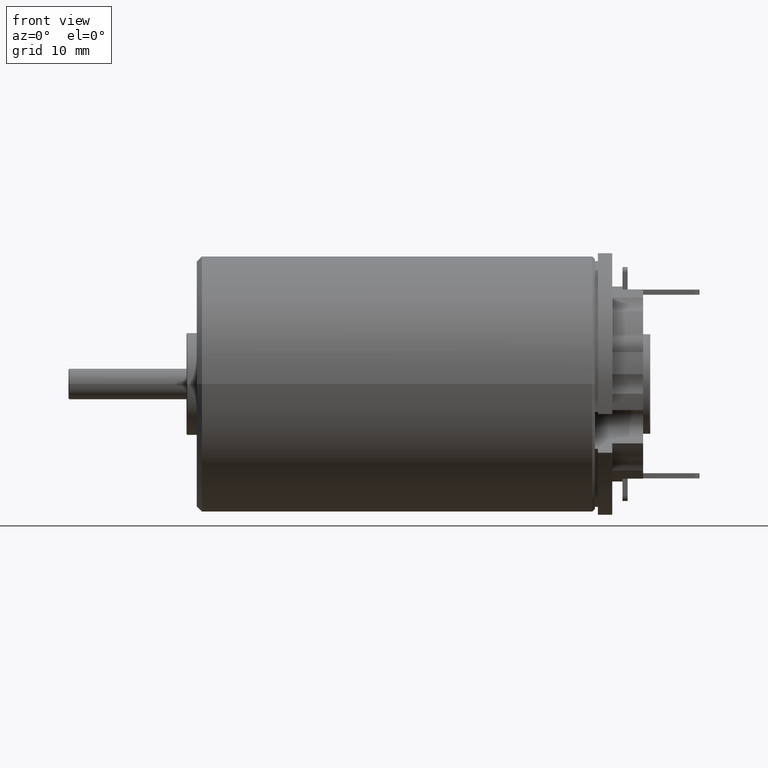
[diagram: clean part render]
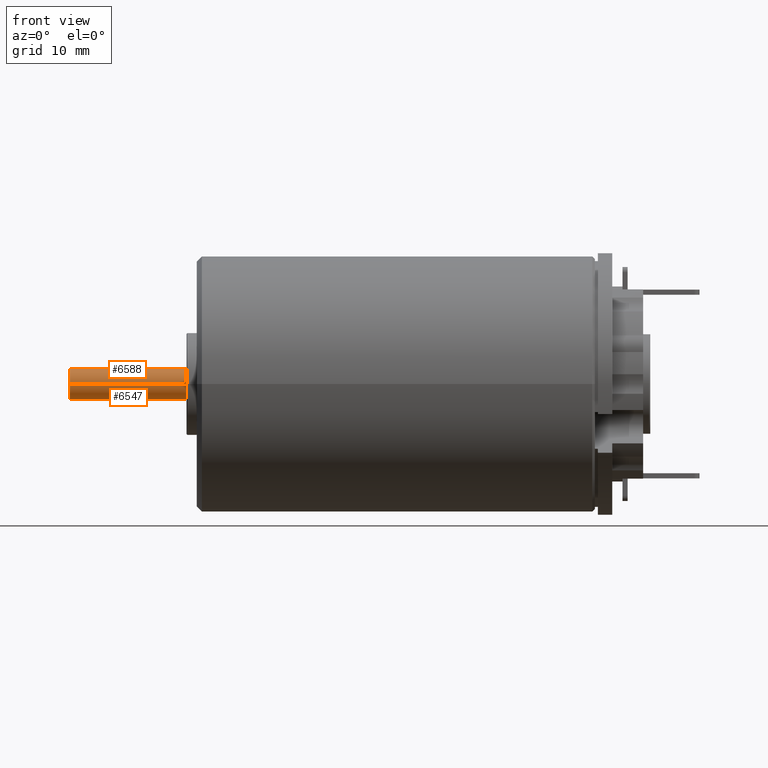
[diagram: same view with one multi-face feature highlighted, each face labeled with its STEP entity id]
A machine part, front view. The highlighted faces form ONE feature: a constant-radius fillet chain: 2 tangent blend faces with common blend radius 1.5 mm. The faces share edges in the B-rep.
Their STEP definitions:
[1] entity #6588 (Cylinder):
#2320=CARTESIAN_POINT('',(-1.E0,0.E0,0.E0));
#2321=DIRECTION('',(-1.E0,0.E0,0.E0));
#2322=DIRECTION('',(0.E0,-1.E0,0.E0));
#2323=AXIS2_PLACEMENT_3D('',#2320,#2321,#2322);
#2348=CARTESIAN_POINT('',(-1.24E1,0.E0,0.E0));
#2349=DIRECTION('',(1.E0,0.E0,0.E0));
#2350=DIRECTION('',(0.E0,1.E0,0.E0));
#2351=AXIS2_PLACEMENT_3D('',#2348,#2349,#2350);
#2353=DIRECTION('',(1.E0,3.456778137392E-10,-4.862429507611E-10));
#2354=VECTOR('',#2353,1.140000000394E1);
#2355=CARTESIAN_POINT('',(-1.240000000394E1,1.499999996059E0,
5.543169418549E-9));
#2356=LINE('',#2355,#2354);
#2357=DIRECTION('',(1.E0,-3.456777942616E-10,4.862429134404E-10));
#2358=VECTOR('',#2357,1.140000000394E1);
#2359=CARTESIAN_POINT('',(-1.240000000394E1,-1.499999996059E0,
-5.543169215137E-9));
#2360=LINE('',#2359,#2358);
#3213=CARTESIAN_POINT('',(-1.E0,-1.5E0,0.E0));
#3214=CARTESIAN_POINT('',(-1.E0,1.5E0,0.E0));
#3215=VERTEX_POINT('',#3213);
#3216=VERTEX_POINT('',#3214);
#3221=CARTESIAN_POINT('',(-1.24E1,-1.5E0,0.E0));
#3222=CARTESIAN_POINT('',(-1.24E1,1.5E0,0.E0));
#3223=VERTEX_POINT('',#3221);
#3224=VERTEX_POINT('',#3222);
#6577=CARTESIAN_POINT('',(-1.3125E1,0.E0,0.E0));
#6578=DIRECTION('',(1.E0,0.E0,0.E0));
#6579=DIRECTION('',(0.E0,-1.E0,0.E0));
#6580=AXIS2_PLACEMENT_3D('',#6577,#6578,#6579);
#6581=CYLINDRICAL_SURFACE('',#6580,1.5E0);
#6582=ORIENTED_EDGE('',*,*,#6568,.F.);
#6583=ORIENTED_EDGE('',*,*,#6543,.T.);
#6584=ORIENTED_EDGE('',*,*,#6528,.F.);
#6585=ORIENTED_EDGE('',*,*,#6540,.F.);
#6586=EDGE_LOOP('',(#6582,#6583,#6584,#6585));
#6587=FACE_OUTER_BOUND('',#6586,.F.);
#6588=ADVANCED_FACE('',(#6587),#6581,.T.);
#2324=CIRCLE('',#2323,1.5E0);
#2352=CIRCLE('',#2351,1.5E0);
#6528=EDGE_CURVE('',#3215,#3216,#2324,.T.);
#6540=EDGE_CURVE('',#3223,#3215,#2360,.T.);
#6543=EDGE_CURVE('',#3224,#3216,#2356,.T.);
#6568=EDGE_CURVE('',#3224,#3223,#2352,.T.);
[2] entity #6547 (Cylinder):
#2315=CARTESIAN_POINT('',(-1.E0,0.E0,0.E0));
#2316=DIRECTION('',(1.E0,0.E0,0.E0));
#2317=DIRECTION('',(0.E0,-1.E0,0.E0));
#2318=AXIS2_PLACEMENT_3D('',#2315,#2316,#2317);
#2335=CARTESIAN_POINT('',(-1.24E1,0.E0,0.E0));
#2336=DIRECTION('',(1.E0,0.E0,0.E0));
#2337=DIRECTION('',(0.E0,-1.E0,0.E0));
#2338=AXIS2_PLACEMENT_3D('',#2335,#2336,#2337);
#2353=DIRECTION('',(1.E0,3.456778137392E-10,-4.862429507611E-10));
#2354=VECTOR('',#2353,1.140000000394E1);
#2355=CARTESIAN_POINT('',(-1.240000000394E1,1.499999996059E0,
5.543169418549E-9));
#2356=LINE('',#2355,#2354);
#2357=DIRECTION('',(1.E0,-3.456777942616E-10,4.862429134404E-10));
#2358=VECTOR('',#2357,1.140000000394E1);
#2359=CARTESIAN_POINT('',(-1.240000000394E1,-1.499999996059E0,
-5.543169215137E-9));
#2360=LINE('',#2359,#2358);
#3213=CARTESIAN_POINT('',(-1.E0,-1.5E0,0.E0));
#3214=CARTESIAN_POINT('',(-1.E0,1.5E0,0.E0));
#3215=VERTEX_POINT('',#3213);
#3216=VERTEX_POINT('',#3214);
#3221=CARTESIAN_POINT('',(-1.24E1,-1.5E0,0.E0));
#3222=CARTESIAN_POINT('',(-1.24E1,1.5E0,0.E0));
#3223=VERTEX_POINT('',#3221);
#3224=VERTEX_POINT('',#3222);
#6533=CARTESIAN_POINT('',(-1.3125E1,0.E0,0.E0));
#6534=DIRECTION('',(1.E0,0.E0,0.E0));
#6535=DIRECTION('',(0.E0,-1.E0,0.E0));
#6536=AXIS2_PLACEMENT_3D('',#6533,#6534,#6535);
#6537=CYLINDRICAL_SURFACE('',#6536,1.5E0);
#6539=ORIENTED_EDGE('',*,*,#6538,.F.);
#6541=ORIENTED_EDGE('',*,*,#6540,.T.);
#6542=ORIENTED_EDGE('',*,*,#6526,.T.);
#6544=ORIENTED_EDGE('',*,*,#6543,.F.);
#6545=EDGE_LOOP('',(#6539,#6541,#6542,#6544));
#6546=FACE_OUTER_BOUND('',#6545,.F.);
#6547=ADVANCED_FACE('',(#6546),#6537,.T.);
#2319=CIRCLE('',#2318,1.5E0);
#2339=CIRCLE('',#2338,1.5E0);
#6526=EDGE_CURVE('',#3215,#3216,#2319,.T.);
#6538=EDGE_CURVE('',#3223,#3224,#2339,.T.);
#6540=EDGE_CURVE('',#3223,#3215,#2360,.T.);
#6543=EDGE_CURVE('',#3224,#3216,#2356,.T.);